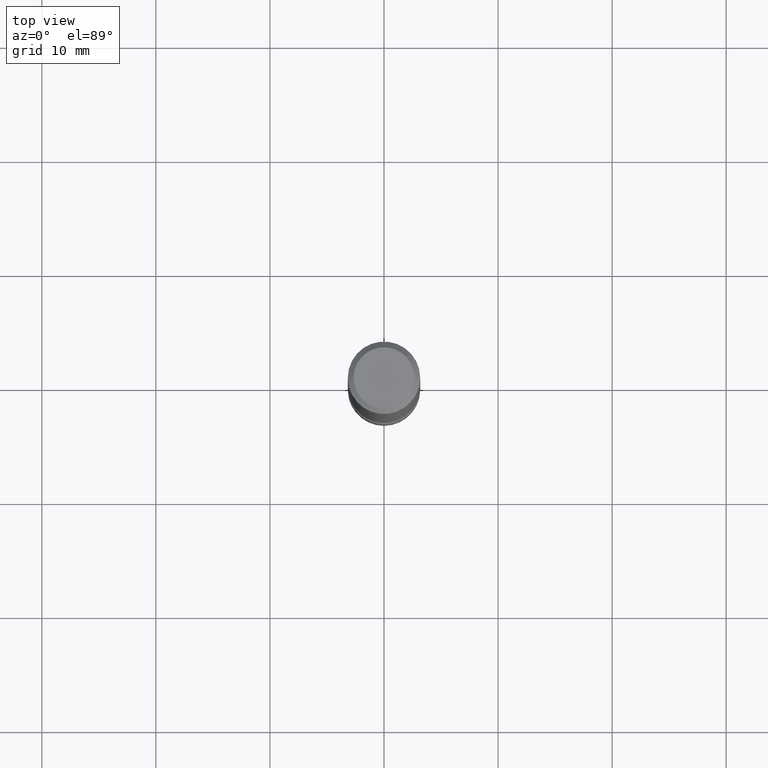
[diagram: clean part render]
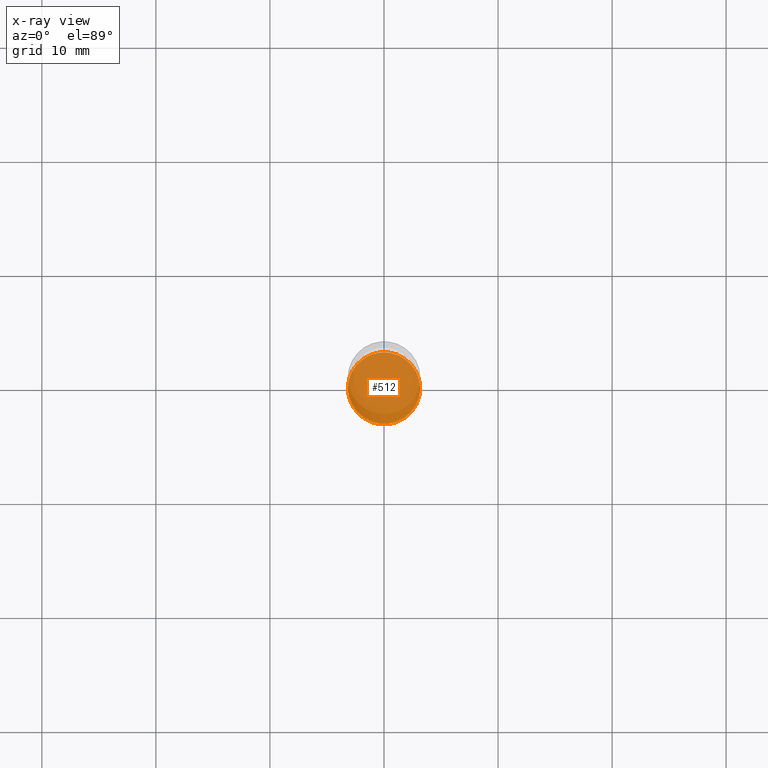
[diagram: x-ray — body ghosted, one internal face saturated and labeled with its STEP entity id]
A machine part, top view, then the same camera in x-ray: the body is ghosted and one INTERNAL B-rep face — a face not visible from any outside direction — is saturated and labeled: STEP entity #512.
In plain terms, the highlighted planar face has unit normal (0, -0, -1).
Its self-contained STEP definition (entity closure, byte-faithful):
#1 = DIRECTION ( 'NONE',  ( 2.445468806185136597E-29, -3.491481338843145583E-15, -1.000000000000000000 ) ) ;
#57 = FACE_OUTER_BOUND ( 'NONE', #499, .T. ) ;
#86 = CARTESIAN_POINT ( 'NONE',  ( 5.196621213143415268E-29, -7.419397845041683624E-15, -2.125000000000000000 ) ) ;
#91 = AXIS2_PLACEMENT_3D ( 'NONE', #303, #531, #133 ) ;
#133 = DIRECTION ( 'NONE',  ( -1.000000000000000000, 6.982962677686262766E-15, 0.000000000000000000 ) ) ;
#157 = ORIENTED_EDGE ( 'NONE', *, *, #311, .T. ) ;
#166 = ORIENTED_EDGE ( 'NONE', *, *, #274, .T. ) ;
#174 = CIRCLE ( 'NONE', #491, 0.1244999999999995138 ) ;
#198 = CARTESIAN_POINT ( 'NONE',  ( 8.693788533719887480E-16, 0.1244999999999920892, -2.125000000000000444 ) ) ;
#274 = EDGE_CURVE ( 'NONE', #450, #355, #174, .T. ) ;
#303 = CARTESIAN_POINT ( 'NONE',  ( 5.196621213143415268E-29, -7.419397845041683624E-15, -2.125000000000000000 ) ) ;
#311 = EDGE_CURVE ( 'NONE', #355, #450, #425, .T. ) ;
#315 = DIRECTION ( 'NONE',  ( -1.000000000000000000, 6.982962677686262766E-15, 0.000000000000000000 ) ) ;
#353 = AXIS2_PLACEMENT_3D ( 'NONE', #198, #496, #547 ) ;
#355 = VERTEX_POINT ( 'NONE', #521 ) ;
#425 = CIRCLE ( 'NONE', #91, 0.1244999999999995138 ) ;
#450 = VERTEX_POINT ( 'NONE', #518 ) ;
#491 = AXIS2_PLACEMENT_3D ( 'NONE', #86, #1, #315 ) ;
#494 = PLANE ( 'NONE',  #353 ) ;
#496 = DIRECTION ( 'NONE',  ( 2.438088387897960049E-29, -3.491481338843145188E-15, -1.000000000000000000 ) ) ;
#499 = EDGE_LOOP ( 'NONE', ( #166, #157 ) ) ;
#512 = ADVANCED_FACE ( 'NONE', ( #57 ), #494, .T. ) ;
#518 = CARTESIAN_POINT ( 'NONE',  ( 0.1244999999999995138, -8.289389584307697702E-15, -2.125000000000000000 ) ) ;
#521 = CARTESIAN_POINT ( 'NONE',  ( -0.1244999999999995138, -6.532911984194780808E-15, -2.125000000000000000 ) ) ;
#531 = DIRECTION ( 'NONE',  ( 2.445468806185136597E-29, -3.491481338843145583E-15, -1.000000000000000000 ) ) ;
#547 = DIRECTION ( 'NONE',  ( -1.000000000000000000, 6.982962677686265922E-15, -4.876176775795935793E-29 ) ) ;